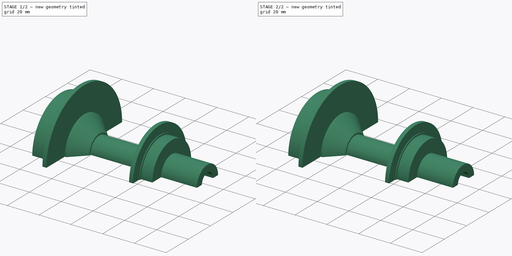
[diagram: build sequence overview — one tinted view per stage of 2, left to right]
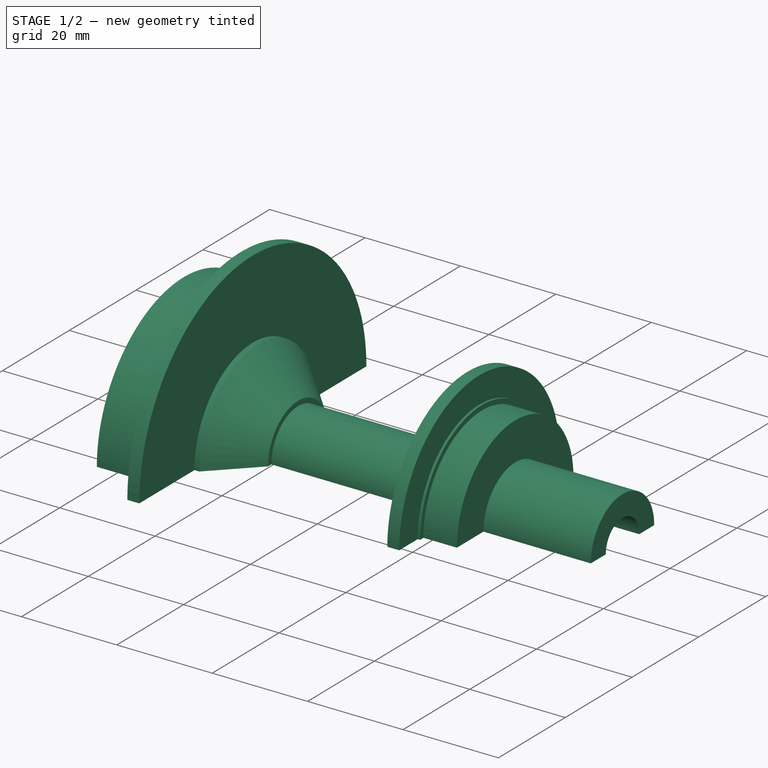
[diagram: stage 1 of 2 — iso view after this stage's code; geometry added in this stage tinted green]
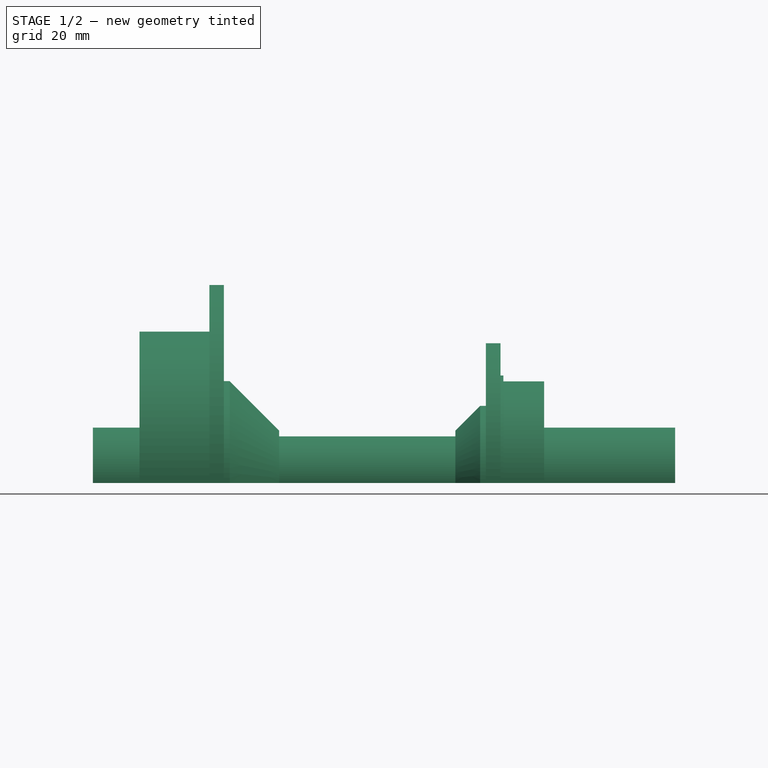
[diagram: stage 1 of 2 — front view after this stage's code; geometry added in this stage tinted green]
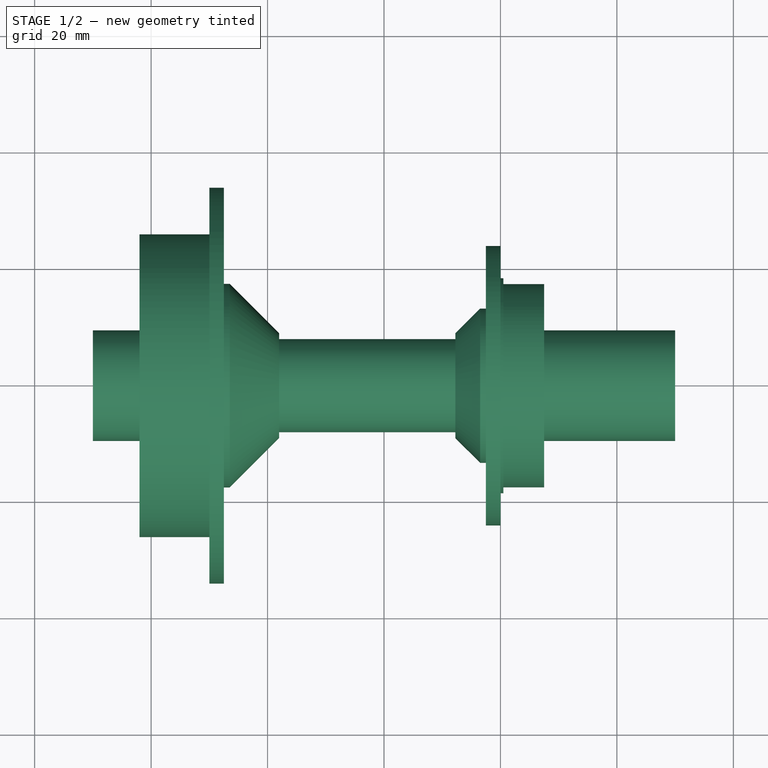
[diagram: stage 1 of 2 — top view after this stage's code; geometry added in this stage tinted green]
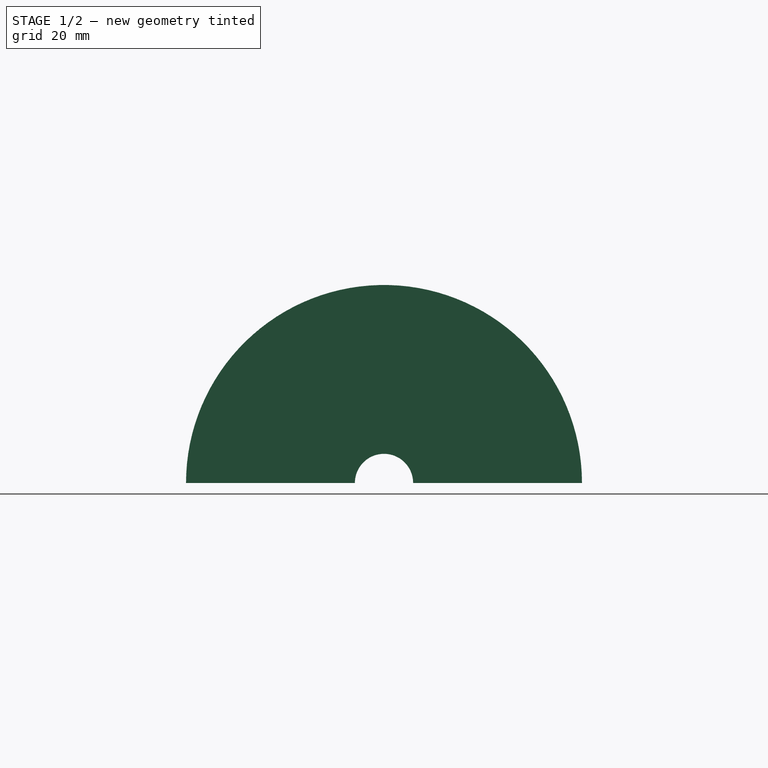
[diagram: stage 1 of 2 — right view after this stage's code; geometry added in this stage tinted green]
FCSTD DOCUMENT  (FreeCAD 0.16R)
Label: 100mmMTB
License: All rights reserved
LicenseURL: http://en.wikipedia.org/wiki/All_rights_reserved
objects: Sketcher::SketchObject×2, PartDesign::Revolution×1, PartDesign::Pocket×1, PartDesign::PolarPattern×1
note: 7 computed .brp shape members not serialized (recipe doc carries the construction recipe); baked Part::Feature solids carry a one-line shape summary decoded from their .brp

FEATURE [Sketcher::SketchObject] Sketch
  sketch-geometry (36):
    g0: LineSegment StartX=27.5 StartY=9.5 StartZ=0 EndX=27.5 EndY=17.46 EndZ=0
    g1: LineSegment StartX=27.5 StartY=17.46 StartZ=0 EndX=20.5 EndY=17.46 EndZ=0
    g2: LineSegment StartX=20.5 StartY=18.46 StartZ=0 EndX=20 EndY=18.46 EndZ=0
    g3: LineSegment StartX=20 StartY=18.46 StartZ=0 EndX=20 EndY=24 EndZ=0
    g4: LineSegment StartX=20 StartY=24 StartZ=0 EndX=17.5 EndY=24 EndZ=0
    g5: LineSegment StartX=17.5 StartY=24 StartZ=0 EndX=17.5 EndY=13.2426 EndZ=0
    g6: LineSegment StartX=17.5 StartY=13.2426 StartZ=0 EndX=16.5 EndY=13.2426 EndZ=0
    g7: LineSegment StartX=16.5 StartY=13.2426 StartZ=0 EndX=12.2574 EndY=9 EndZ=0
    g8: LineSegment StartX=12.2574 StartY=8 StartZ=0 EndX=-18.0147 EndY=8 EndZ=0
    g9: LineSegment StartX=-27.5 StartY=17.4853 StartZ=0 EndX=-27.5 EndY=34 EndZ=0
    g10: LineSegment StartX=-27.5 StartY=34 StartZ=0 EndX=-30 EndY=34 EndZ=0
    g11: LineSegment StartX=-30 StartY=34 StartZ=0 EndX=-30 EndY=26 EndZ=0
    g12: LineSegment StartX=-42 StartY=26 StartZ=0 EndX=-42 EndY=9.5 EndZ=0
    g13: LineSegment StartX=-26.5 StartY=17.4853 StartZ=0 EndX=-18.0147 EndY=9 EndZ=0
    g14: LineSegment StartX=-27.5 StartY=17.4853 StartZ=0 EndX=-26.5 EndY=17.4853 EndZ=0
    g15: LineSegment StartX=-18.0147 StartY=9 StartZ=0 EndX=-18.0147 EndY=8 EndZ=0
    g16: LineSegment StartX=12.2574 StartY=9 StartZ=0 EndX=12.2574 EndY=8 EndZ=0
    g17: LineSegment StartX=20.5 StartY=18.46 StartZ=0 EndX=20.5 EndY=17.46 EndZ=0
    g18: LineSegment StartX=-42 StartY=26 StartZ=0 EndX=-30 EndY=26 EndZ=0
    g19: LineSegment [constr] StartX=23 StartY=55 StartZ=0 EndX=23 EndY=20 EndZ=0
    g20: LineSegment [constr] StartX=28.5 StartY=45 StartZ=0 EndX=28.5 EndY=20 EndZ=0
    g21: LineSegment [constr] StartX=34 StartY=33 StartZ=0 EndX=34 EndY=20 EndZ=0
    g22: LineSegment [constr] StartX=39.5 StartY=28 StartZ=0 EndX=39.5 EndY=20 EndZ=0
    g23: LineSegment [constr] StartX=45 StartY=22.5 StartZ=0 EndX=45 EndY=9.5 EndZ=0
    g24: LineSegment StartX=-50 StartY=5 StartZ=0 EndX=-50 EndY=9.5 EndZ=0
    g25: LineSegment [constr] StartX=-43.6 StartY=80 StartZ=0 EndX=-42 EndY=80 EndZ=0
    g26: LineSegment [constr] StartX=-42 StartY=80 StartZ=0 EndX=-42 EndY=20 EndZ=0
    g27: LineSegment [constr] StartX=-42 StartY=20 StartZ=0 EndX=-43.6 EndY=20 EndZ=0
    g28: LineSegment [constr] StartX=-43.6 StartY=20 StartZ=0 EndX=-43.6 EndY=80 EndZ=0
    g29: LineSegment [constr] StartX=0 StartY=0 StartZ=0 EndX=0 EndY=193 EndZ=0
    g30: LineSegment [constr] StartX=-30 StartY=34 StartZ=0 EndX=0 EndY=193 EndZ=0
    g31: LineSegment [constr] StartX=20 StartY=24 StartZ=0 EndX=0 EndY=193 EndZ=0
    g32: LineSegment StartX=27.5 StartY=9.5 StartZ=0 EndX=50 EndY=9.5 EndZ=0
    g33: LineSegment StartX=50 StartY=9.5 StartZ=0 EndX=50 EndY=5 EndZ=0
    g34: LineSegment StartX=-50 StartY=5 StartZ=0 EndX=50 EndY=5 EndZ=0
    g35: LineSegment StartX=-42 StartY=9.5 StartZ=0 EndX=-50 EndY=9.5 EndZ=0
  constraints (113):
    c: Coincident(g2,g3)
    c: Vertical(g3)
    c: Coincident(g3,g4)
    c: Horizontal(g4)
    c: Coincident(g4,g5)
    c: Vertical(g5)
    c: Coincident(g5,g6)
    c: Coincident(g6,g7)
    c: Horizontal(g8)
    c: Vertical(g9)
    c: Coincident(g9,g10)
    c: Horizontal(g6)
    c: Horizontal(g1)
    c: Horizontal(g10)
    c: DistanceY(g-1,g0) = 9.5
    c: Vertical(g0)
    c: DistanceX(g2,g2) = 0.5
    c: Horizontal(g2)
    c: DistanceY(g-1,g1) = 17.46
    c: DistanceX(g4,g4) = 2.5
    c: DistanceX(g1,g1) = 7
    c: DistanceY(g1,g2) = 1
    c: DistanceY(g-1,g8) = 8
    c: DistanceX(g10,g10) = 2.5
    c: DistanceY(g-1,g4) = 24
    c: Distance(g6) = 1
    c: Angle(g7) = -2.35619
    c: Distance(g7) = 6
    c: Coincident(g10,g11)
    c: Vertical(g12)
    c: Vertical(g11)
    c: DistanceY(g10) = 34
    c: DistanceY(g12) = 26
    c: DistanceX(g12,g11) = 12
    c: Angle(g13) = -0.785398
    c: Distance(g13) = 12
    c: Horizontal(g14)
    c: DistanceX(g14,g14) = 1
    c: Vertical(g15)
    c: Distance(g15) = 1
    c: Coincident(g15,g13)
    c: Coincident(g14,g13)
    c: Coincident(g14,g9)
    c: Coincident(g15,g8)
    c: Vertical(g16)
    c: Distance(g16) = 1
    c: Coincident(g16,g8)
    c: Coincident(g16,g7)
    c: Vertical(g17)
    c: Coincident(g17,g2)
    c: Coincident(g17,g1)
    c: Horizontal(g18)
    c: Coincident(g18,g12)
    c: Coincident(g18,g11)
    c: Vertical(g19)
    c: Vertical(g20)
    c: Vertical(g21)
    c: Vertical(g23)
    c: Vertical(g22)
    c: DistanceX(g19,g20) = 5.5
    c: DistanceX(g20,g21) = 5.5
    c: DistanceX(g21,g22) = 5.5
    c: DistanceX(g22,g23) = 5.5
    c: DistanceY(g19) = 55
    c: DistanceX(g2,g19) = 3
    c: Vertical(g24)
    c: Coincident(g25,g26)
    c: Coincident(g26,g27)
    c: Coincident(g27,g28)
    c: Coincident(g28,g25)
    c: Horizontal(g25)
    c: Horizontal(g27)
    c: Vertical(g26)
    c: Vertical(g28)
    c: DistanceX(g25,g25) = 1.6
    c: PointOnObject(g29,g-1)
    c: Vertical(g29)
    c: Distance(g29) = 193
    c: Coincident(g30,g29)
    c: Coincident(g30,g31)
    c: Coincident(g31,g3)
    c: Coincident(g30,g10)
    c: DistanceY(g22) = 20
    c: DistanceY(g21) = 20
    c: DistanceY(g20) = 20
    c: DistanceY(g19) = 20
    c: Distance(g20) = 25
    c: Distance(g22) = 8
    c: Distance(g21) = 13
    c: DistanceY(g23,g23) = 13
    c: Distance(g26) = 60
    c: Coincident(g1,g0)
    c: Coincident(g34,g33)
    c: Horizontal(g34)
    c: Vertical(g33)
    c: Distance(g32,g23) = 5
    c: Coincident(g33,g32)
    c: PointOnObject(g23,g32)
    c: Horizontal(g32)
    c: DistanceY(g32) = 9.5
    c: DistanceY(g33) = 5
    c: DistanceX(g24,g33) = 100
    c: DistanceX(g24,g29) = 50
    c: Coincident(g35,g12)
    c: Coincident(g35,g24)
    c: DistanceY(g26) = 20
    c: Coincident(g24,g34)
    c: Horizontal(g35)
    c: DistanceY(g12) = 9.5
    c: PointOnObject(g26,g12)
    c: DistanceX(g35,g35) = 8
    c: Coincident(g32,g0)
    c: Coincident(g-1,g29)
FEATURE [PartDesign::Revolution] Revolution
  Angle = 180
  Axis = (1,0,0)
  Base = (0,0,0)
  ReferenceAxis = -> Sketch [H_Axis]
  Sketch = -> Sketch
FEATURE [Sketcher::SketchObject] Sketch001
  Placement = pos=(-74.5,0,0) rot=(0.57735,-0.57735,-0.57735;2.0944rad)
  Support = -> Revolution [Face24]
  sketch-geometry (2):
    g0: Circle CenterX=0 CenterY=22 CenterZ=0 NormalX=0 NormalY=0 NormalZ=1 Radius=2.5
    g1: Circle CenterX=0 CenterY=15 CenterZ=0 NormalX=0 NormalY=0 NormalZ=1 Radius=2.5
  constraints (6):
    c: Radius(g0) = 2.5
    c: PointOnObject(g0,g-2)
    c: DistanceY(g0) = 22
    c: Radius(g1) = 2.5
    c: PointOnObject(g1,g-2)
    c: DistanceY(g1) = 15
FEATURE [PartDesign::Pocket] Pocket
  Length = 22
  Sketch = -> Sketch001
  Type = 0
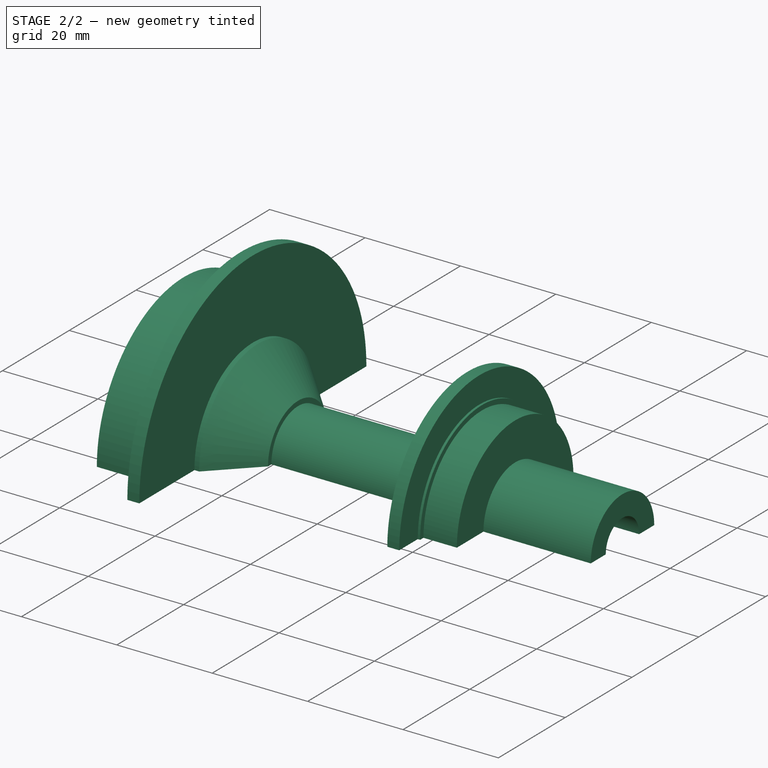
[diagram: stage 2 of 2 — iso view after this stage's code; geometry added in this stage tinted green]
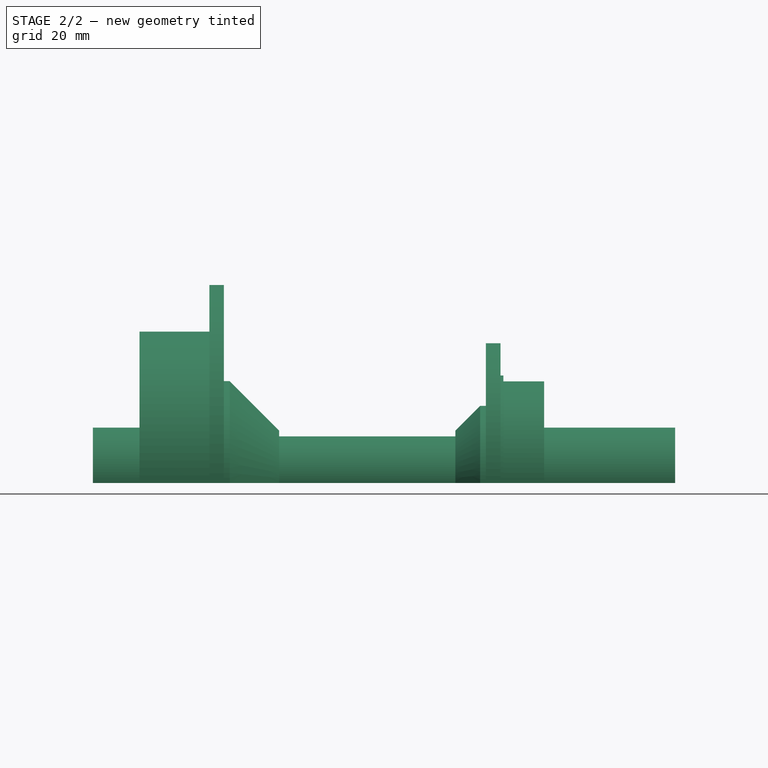
[diagram: stage 2 of 2 — front view after this stage's code; geometry added in this stage tinted green]
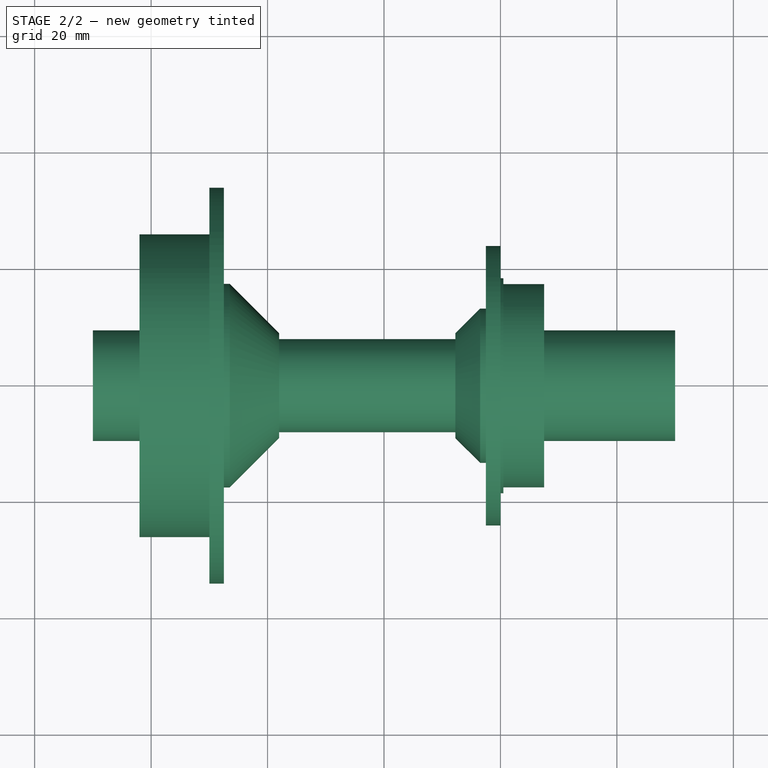
[diagram: stage 2 of 2 — top view after this stage's code; geometry added in this stage tinted green]
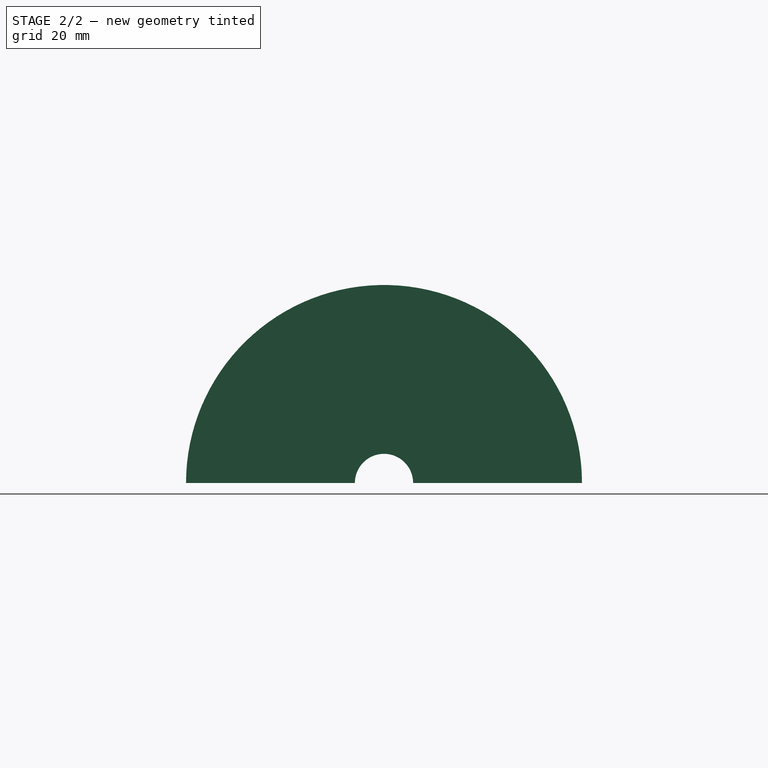
[diagram: stage 2 of 2 — right view after this stage's code; geometry added in this stage tinted green]
FEATURE [PartDesign::PolarPattern] PolarPattern
  Angle = 360
  Axis = -> Sketch001 [N_Axis]
  Occurrences = 12
  Originals = -> [Pocket]
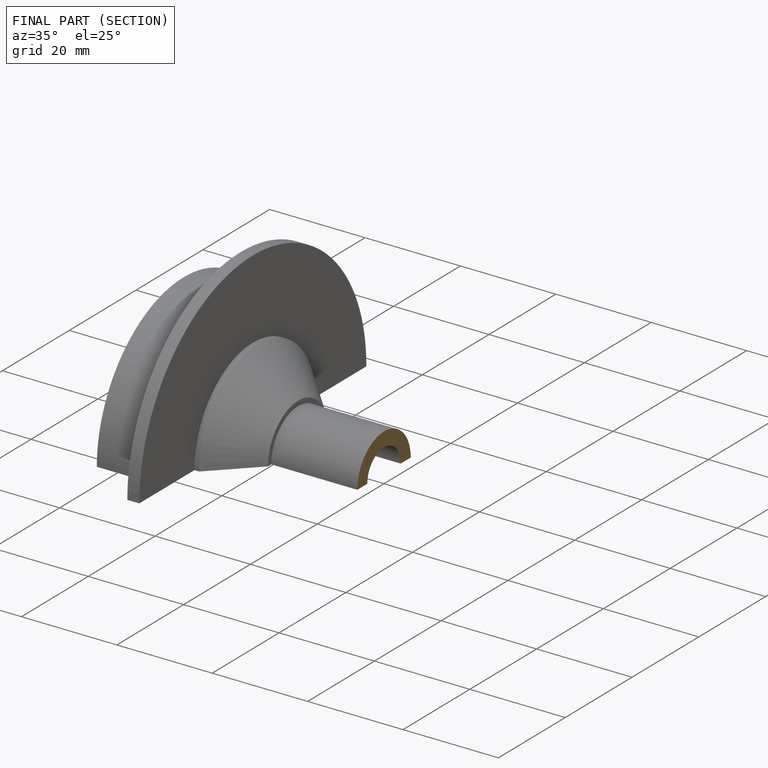
[diagram: finished part — half-section view (interior)]
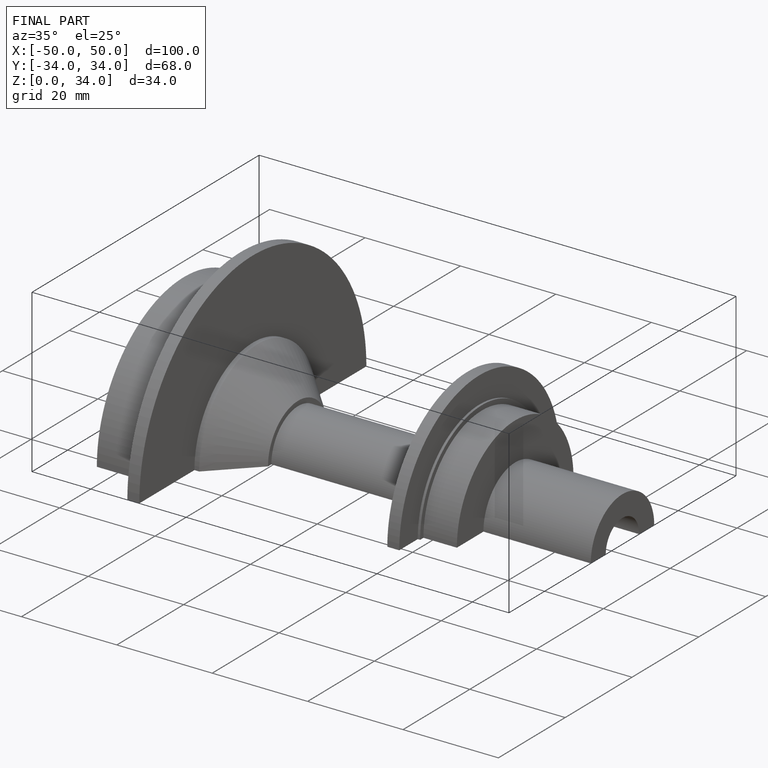
[diagram: finished part — iso view with bounding-box wireframe]
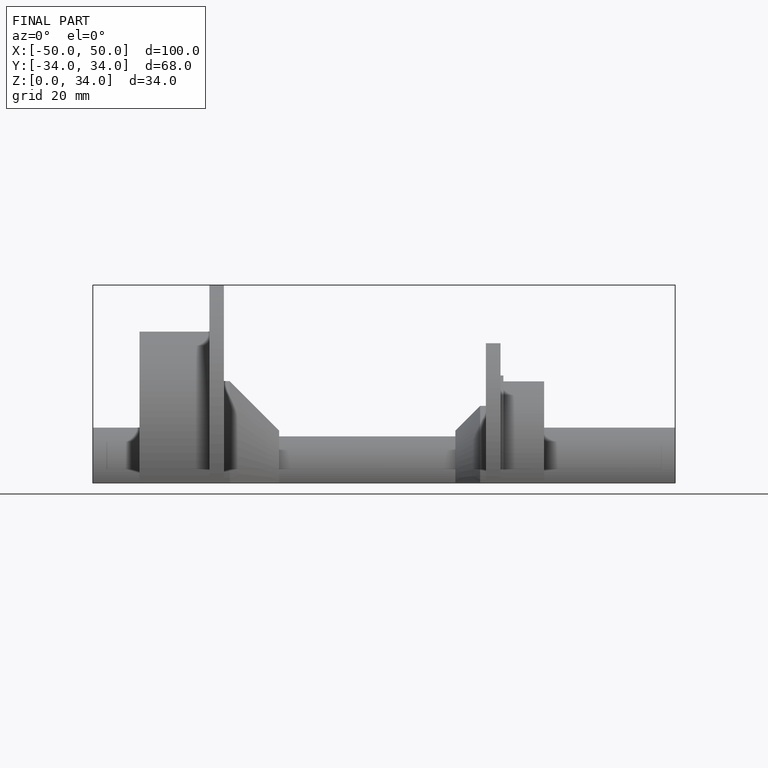
[diagram: finished part — front view with bounding-box wireframe]
